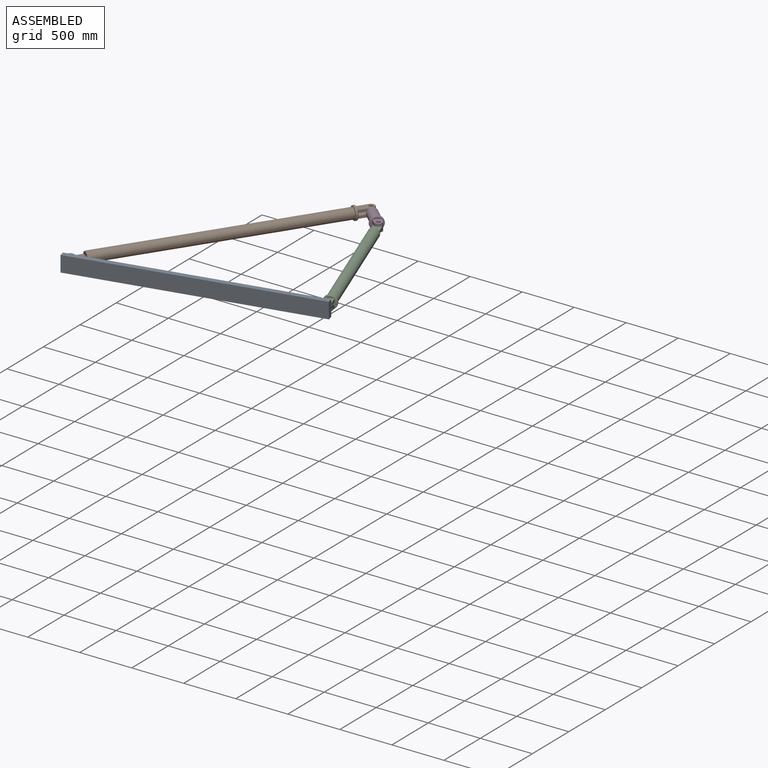
[diagram: assembled view]
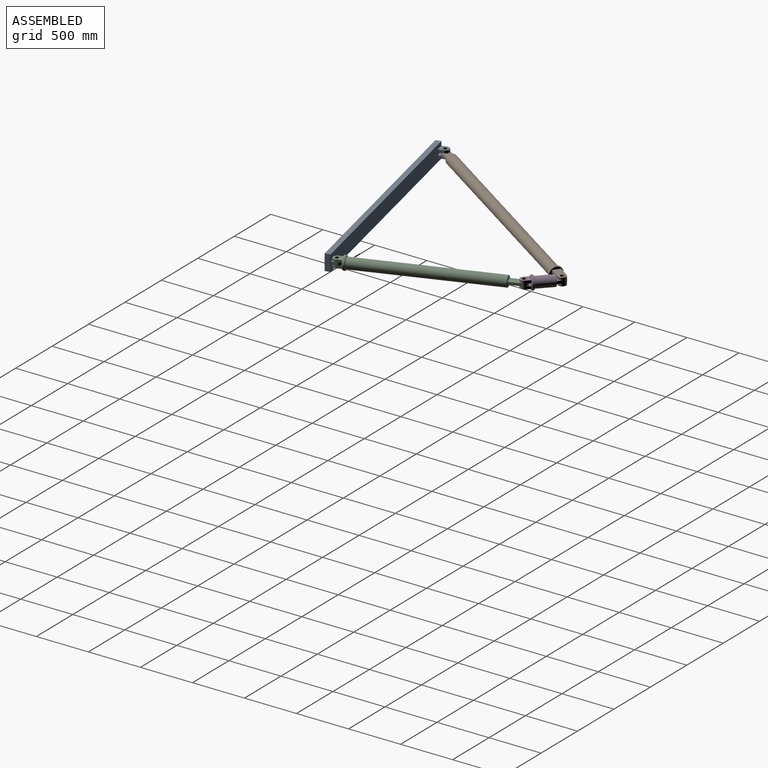
[diagram: assembled view, second angle]
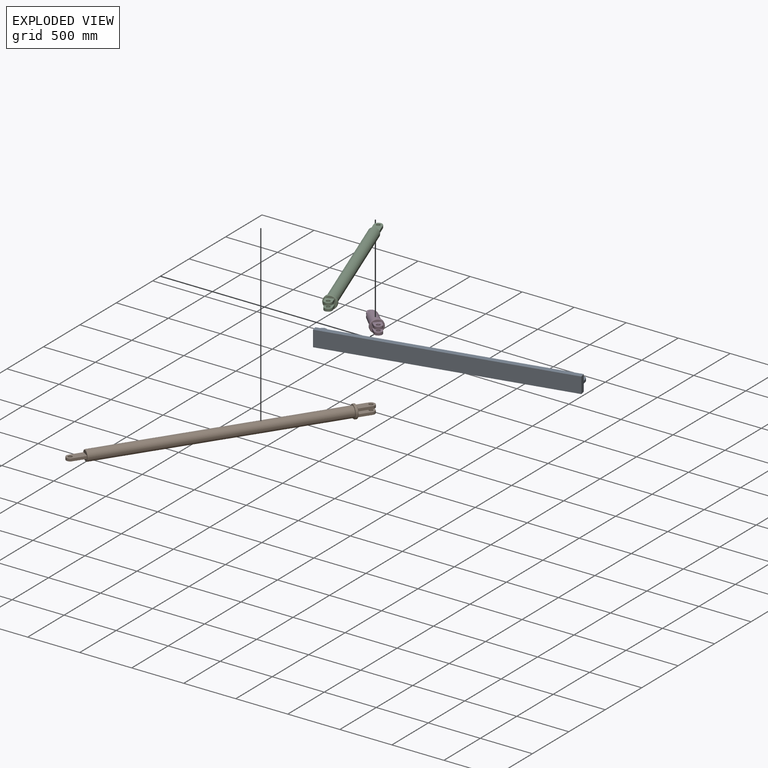
[diagram: exploded view]
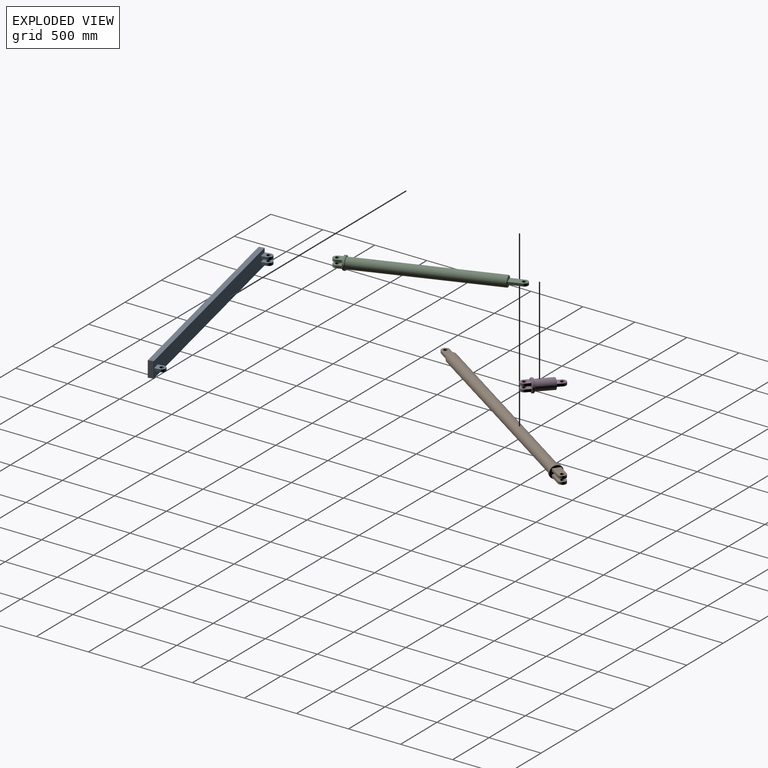
[diagram: exploded view, second angle]
ASSEMBLY  parts=4 mates=4
PART A: 40 faces, bbox 2286x139.7x152.4 mm
  f0: cylinder r=19.05mm len=38.1mm, axis (0,0,1), area 3040.2mm2, adj f20,f22
  f1: cylinder r=19.05mm len=38.1mm, axis (0,0,1), area 3040.2mm2, adj f21,f23
  f2: cylinder r=19.05mm len=38.1mm, axis (0,0,1), area 3040.2mm2, adj f15,f16
  f3: cylinder r=38.1mm len=76.2mm, axis (0,0,-1), area 3040.2mm2, adj f18,f19,f21,f23
  f4: plane 49.8x25.4mm, normal (-1,0,0), area 1264.9mm2, adj f17,f20,f22,f38
  f5: plane 49.8x25.4mm, normal (1,0,0), area 1264.9mm2, adj f17,f20,f22,f37
  f6: plane 2286x49.8mm, normal (0,0,1), area 113842.8mm2, adj f7,f10,f11,f24
  f7: plane 2286x152.4mm, normal (0,-1,0), area 348386.4mm2, adj f6,f8,f10,f11
  f8: plane 2286x49.8mm, normal (0,0,-1), area 113842.8mm2, adj f7,f10,f11,f27
  f9: plane 2284x150.4mm, normal (0,1,0), area 337085.6mm2, adj f24,f25,f26,f27,f28,f29,f30,f31
  f10: plane 152.4x49.8mm, normal (1,0,0), area 7589.5mm2, adj f6,f7,f8,f25
  f11: plane 152.4x49.8mm, normal (-1,0,0), area 7589.5mm2, adj f6,f7,f8,f26
  f12: cylinder r=38.1mm len=76.2mm, axis (0,0,-1), area 3040.2mm2, adj f13,f14,f15,f16
  f13: plane 49.8x25.4mm, normal (-1,0,0), area 1264.9mm2, adj f12,f15,f16,f28
  f14: plane 49.8x25.4mm, normal (1,0,0), area 1264.9mm2, adj f12,f15,f16,f31
  f15: plane 87.9x76.2mm, normal (0,0,1), area 4934.9mm2, adj f2,f12,f13,f14,f29
  f16: plane 87.9x76.2mm, normal (0,0,-1), area 4934.9mm2, adj f2,f12,f13,f14,f30
  f17: cylinder r=38.1mm len=76.2mm, axis (0,0,-1), area 3040.2mm2, adj f4,f5,f20,f22
  f18: plane 49.8x25.4mm, normal (-1,0,0), area 1264.9mm2, adj f3,f21,f23,f32
  f19: plane 49.8x25.4mm, normal (1,0,0), area 1264.9mm2, adj f3,f21,f23,f35
  f20: plane 87.9x76.2mm, normal (0,0,1), area 4934.9mm2, adj f0,f4,f5,f17,f39
  f21: plane 87.9x76.2mm, normal (0,0,-1), area 4934.9mm2, adj f1,f3,f18,f19,f34
  f22: plane 87.9x76.2mm, normal (0,0,-1), area 4934.9mm2, adj f0,f4,f5,f17,f36
  f23: plane 87.9x76.2mm, normal (0,0,1), area 4934.9mm2, adj f1,f3,f18,f19,f33
  f24: cylinder r=1mm len=2286mm, axis (1,0,0), area 3589.7mm2, adj f6,f9,f25,f26
  f25: cylinder r=1mm len=152.4mm, axis (0,0,1), area 238.2mm2, adj f9,f10,f24,f27
  f26: cylinder r=1mm len=152.4mm, axis (0,0,-1), area 238.2mm2, adj f9,f11,f24,f27
  f27: cylinder r=1mm len=2286mm, axis (1,0,0), area 3589.7mm2, adj f8,f9,f25,f26
  f28: cylinder r=1mm len=27.4mm, axis (0,0,-1), area 41mm2, adj f9,f13,f29,f30
  f29: cylinder r=1mm len=78.2mm, axis (1,0,0), area 120.8mm2, adj f9,f15,f28,f31
  f30: cylinder r=1mm len=78.2mm, axis (-1,0,0), area 120.8mm2, adj f9,f16,f28,f31
  f31: cylinder r=1mm len=27.4mm, axis (0,0,-1), area 41mm2, adj f9,f14,f29,f30
  f32: cylinder r=1mm len=27.4mm, axis (0,0,-1), area 41mm2, adj f9,f18,f33,f34
  f33: cylinder r=1mm len=78.2mm, axis (1,0,0), area 120.8mm2, adj f9,f23,f32,f35
  f34: cylinder r=1mm len=78.2mm, axis (-1,0,0), area 120.8mm2, adj f9,f21,f32,f35
  f35: cylinder r=1mm len=27.4mm, axis (0,0,-1), area 41mm2, adj f9,f19,f33,f34
  f36: cylinder r=1mm len=78.2mm, axis (-1,0,0), area 120.8mm2, adj f9,f22,f37,f38
  f37: cylinder r=1mm len=27.4mm, axis (0,0,-1), area 41mm2, adj f5,f9,f36,f39
  f38: cylinder r=1mm len=27.4mm, axis (0,0,-1), area 41mm2, adj f4,f9,f36,f39
  f39: cylinder r=1mm len=78.2mm, axis (1,0,0), area 120.8mm2, adj f9,f20,f37,f38
PART B: 30 faces, bbox 2616.2x137.5x137.5 mm
  f0: cylinder r=19.05mm len=38.1mm, axis (0,0,1), area 3040.2mm2, adj f21,f23
  f1: torus R=57.15mm, axis (-1,0,0), area 3835.1mm2, adj f6,f9
  f2: torus R=57.15mm, axis (1,0,0), area 3835.1mm2, adj f6,f17
  f3: torus R=44.45mm, axis (1,0,0), area 3039.1mm2, adj f7,f8
  f4: cylinder r=19.05mm len=38.1mm, axis (0,0,1), area 3040.2mm2, adj f10,f18
  f5: cylinder r=19.05mm len=38.1mm, axis (0,0,1), area 3040.2mm2, adj f13,f16
  f6: cylinder r=63.5mm len=127mm, axis (-1,0,0), area 5067.1mm2, adj f1,f2
  f7: cylinder r=50.8mm len=2254.25mm, axis (-1,0,0), area 719524.6mm2, adj f3,f9
  f8: plane 88.9x88.9mm, normal (1,0,0), area 3729.8mm2, adj f3,f26,f27,f28,f29
  f9: plane 114.3x114.3mm, normal (1,0,0), area 2153.5mm2, adj f1,f7
  f10: plane 165.1x76.2mm, normal (0,0,-1), area 10817.5mm2, adj f4,f11,f17,f19,f20
  f11: cylinder r=38.1mm len=76.2mm, axis (0,0,1), area 3040.2mm2, adj f10,f18,f19,f20
  f12: cylinder r=38.1mm len=76.2mm, axis (0,0,1), area 3040.2mm2, adj f13,f14,f15,f16
  f13: plane 165.1x76.2mm, normal (0,0,1), area 10817.5mm2, adj f5,f12,f14,f15,f17
  f14: plane 127x25.4mm, normal (0,1,0), area 3225.8mm2, adj f12,f13,f16,f17
  f15: plane 127x25.4mm, normal (0,-1,0), area 3225.8mm2, adj f12,f13,f16,f17
  f16: plane 165.1x76.2mm, normal (0,0,-1), area 10817.5mm2, adj f5,f12,f14,f15,f17
  f17: plane 114.3x114.3mm, normal (-1,0,0), area 6389.9mm2, adj f2,f10,f13,f14,f15,f16,f18,f19
  f18: plane 165.1x76.2mm, normal (0,0,1), area 10817.5mm2, adj f4,f11,f17,f19,f20
  f19: plane 127x25.4mm, normal (0,1,0), area 3225.8mm2, adj f10,f11,f17,f18
  f20: plane 127x25.4mm, normal (0,-1,0), area 3225.8mm2, adj f10,f11,f17,f18
  f21: plane 162.56x76.2mm, normal (0,0,1), area 10623.9mm2, adj f0,f22,f24,f25,f26
  f22: plane 124.46x25.4mm, normal (0,-1,0), area 3161.3mm2, adj f21,f23,f25,f27
  f23: plane 162.56x76.2mm, normal (0,0,-1), area 10623.9mm2, adj f0,f22,f24,f25,f29
  f24: plane 124.46x25.4mm, normal (0,1,0), area 3161.3mm2, adj f21,f23,f25,f28
  f25: cylinder r=38.1mm len=76.2mm, axis (0,0,-1), area 3040.2mm2, adj f21,f22,f23,f24
  f26: cylinder r=2.54mm len=81.28mm, axis (0,-1,0), area 311.4mm2, adj f8,f21,f27,f28
  f27: cylinder r=2.54mm len=30.48mm, axis (0,0,-1), area 108.7mm2, adj f8,f22,f26,f29
  f28: cylinder r=2.54mm len=30.48mm, axis (0,0,1), area 108.7mm2, adj f8,f24,f26,f29
  f29: cylinder r=2.54mm len=81.28mm, axis (0,1,0), area 311.4mm2, adj f8,f23,f27,f28
PART C: 30 faces, bbox 1600.2x137.5x137.5 mm
  f0: cylinder r=19.05mm len=38.1mm, axis (0,0,1), area 3040.2mm2, adj f21,f23
  f1: torus R=57.15mm, axis (-1,0,0), area 3835.1mm2, adj f6,f9
  f2: torus R=57.15mm, axis (1,0,0), area 3835.1mm2, adj f6,f17
  f3: torus R=44.45mm, axis (1,0,0), area 3039.1mm2, adj f7,f8
  f4: cylinder r=19.05mm len=38.1mm, axis (0,0,1), area 3040.2mm2, adj f10,f18
  f5: cylinder r=19.05mm len=38.1mm, axis (0,0,1), area 3040.2mm2, adj f13,f16
  f6: cylinder r=63.5mm len=127mm, axis (-1,0,0), area 5067.1mm2, adj f1,f2
  f7: cylinder r=50.8mm len=1314.45mm, axis (-1,0,0), area 419553.8mm2, adj f3,f9
  f8: plane 88.9x88.9mm, normal (1,0,0), area 3729.8mm2, adj f3,f26,f27,f28,f29
  f9: plane 114.3x114.3mm, normal (1,0,0), area 2153.5mm2, adj f1,f7
  f10: plane 88.9x76.2mm, normal (0,0,-1), area 5011.1mm2, adj f4,f11,f17,f19,f20
  f11: cylinder r=38.1mm len=76.2mm, axis (0,0,1), area 3040.2mm2, adj f10,f18,f19,f20
  f12: cylinder r=38.1mm len=76.2mm, axis (0,0,1), area 3040.2mm2, adj f13,f14,f15,f16
  f13: plane 88.9x76.2mm, normal (0,0,1), area 5011.1mm2, adj f5,f12,f14,f15,f17
  f14: plane 50.8x25.4mm, normal (0,1,0), area 1290.3mm2, adj f12,f13,f16,f17
  f15: plane 50.8x25.4mm, normal (0,-1,0), area 1290.3mm2, adj f12,f13,f16,f17
  f16: plane 88.9x76.2mm, normal (0,0,-1), area 5011.1mm2, adj f5,f12,f14,f15,f17
  f17: plane 114.3x114.3mm, normal (-1,0,0), area 6389.9mm2, adj f2,f10,f13,f14,f15,f16,f18,f19
  f18: plane 88.9x76.2mm, normal (0,0,1), area 5011.1mm2, adj f4,f11,f17,f19,f20
  f19: plane 50.8x25.4mm, normal (0,1,0), area 1290.3mm2, adj f10,f11,f17,f18
  f20: plane 50.8x25.4mm, normal (0,-1,0), area 1290.3mm2, adj f10,f11,f17,f18
  f21: plane 162.56x76.2mm, normal (0,0,1), area 10623.9mm2, adj f0,f22,f24,f25,f26
  f22: plane 124.46x25.4mm, normal (0,-1,0), area 3161.3mm2, adj f21,f23,f25,f27
  f23: plane 162.56x76.2mm, normal (0,0,-1), area 10623.9mm2, adj f0,f22,f24,f25,f29
  f24: plane 124.46x25.4mm, normal (0,1,0), area 3161.3mm2, adj f21,f23,f25,f28
  f25: cylinder r=38.1mm len=76.2mm, axis (0,0,-1), area 3040.2mm2, adj f21,f22,f23,f24
  f26: cylinder r=2.54mm len=81.28mm, axis (0,-1,0), area 311.4mm2, adj f8,f21,f27,f28
  f27: cylinder r=2.54mm len=30.48mm, axis (0,0,-1), area 108.7mm2, adj f8,f22,f26,f29
  f28: cylinder r=2.54mm len=30.48mm, axis (0,0,1), area 108.7mm2, adj f8,f24,f26,f29
  f29: cylinder r=2.54mm len=81.28mm, axis (0,1,0), area 311.4mm2, adj f8,f23,f27,f28
PART D: 30 faces, bbox 381x137.5x137.5 mm
  f0: cylinder r=19.05mm len=38.1mm, axis (0,0,1), area 3040.2mm2, adj f21,f23
  f1: torus R=57.15mm, axis (-1,0,0), area 3835.1mm2, adj f6,f9
  f2: torus R=57.15mm, axis (1,0,0), area 3835.1mm2, adj f6,f17
  f3: torus R=44.45mm, axis (1,0,0), area 3039.1mm2, adj f7,f8
  f4: cylinder r=19.05mm len=38.1mm, axis (0,0,1), area 3040.2mm2, adj f10,f18
  f5: cylinder r=19.05mm len=38.1mm, axis (0,0,1), area 3040.2mm2, adj f13,f16
  f6: cylinder r=63.5mm len=127mm, axis (-1,0,0), area 5067.1mm2, adj f1,f2
  f7: cylinder r=50.8mm len=171.45mm, axis (-1,0,0), area 54724.4mm2, adj f3,f9
  f8: plane 88.9x88.9mm, normal (1,0,0), area 3729.8mm2, adj f3,f26,f27,f28,f29
  f9: plane 114.3x114.3mm, normal (1,0,0), area 2153.5mm2, adj f1,f7
  f10: plane 88.9x76.2mm, normal (0,0,-1), area 5011.1mm2, adj f4,f11,f17,f19,f20
  f11: cylinder r=38.1mm len=76.2mm, axis (0,0,1), area 3040.2mm2, adj f10,f18,f19,f20
  f12: cylinder r=38.1mm len=76.2mm, axis (0,0,1), area 3040.2mm2, adj f13,f14,f15,f16
  f13: plane 88.9x76.2mm, normal (0,0,1), area 5011.1mm2, adj f5,f12,f14,f15,f17
  f14: plane 50.8x25.4mm, normal (0,1,0), area 1290.3mm2, adj f12,f13,f16,f17
  f15: plane 50.8x25.4mm, normal (0,-1,0), area 1290.3mm2, adj f12,f13,f16,f17
  f16: plane 88.9x76.2mm, normal (0,0,-1), area 5011.1mm2, adj f5,f12,f14,f15,f17
  f17: plane 114.3x114.3mm, normal (-1,0,0), area 6389.9mm2, adj f2,f10,f13,f14,f15,f16,f18,f19
  f18: plane 88.9x76.2mm, normal (0,0,1), area 5011.1mm2, adj f4,f11,f17,f19,f20
  f19: plane 50.8x25.4mm, normal (0,1,0), area 1290.3mm2, adj f10,f11,f17,f18
  f20: plane 50.8x25.4mm, normal (0,-1,0), area 1290.3mm2, adj f10,f11,f17,f18
  f21: plane 86.36x76.2mm, normal (0,0,1), area 4817.5mm2, adj f0,f22,f24,f25,f26
  f22: plane 48.26x25.4mm, normal (0,-1,0), area 1225.8mm2, adj f21,f23,f25,f27
  f23: plane 86.36x76.2mm, normal (0,0,-1), area 4817.5mm2, adj f0,f22,f24,f25,f29
  f24: plane 48.26x25.4mm, normal (0,1,0), area 1225.8mm2, adj f21,f23,f25,f28
  f25: cylinder r=38.1mm len=76.2mm, axis (0,0,-1), area 3040.2mm2, adj f21,f22,f23,f24
  f26: cylinder r=2.54mm len=81.28mm, axis (0,-1,0), area 311.4mm2, adj f8,f21,f27,f28
  f27: cylinder r=2.54mm len=30.48mm, axis (0,0,-1), area 108.7mm2, adj f8,f22,f26,f29
  f28: cylinder r=2.54mm len=30.48mm, axis (0,0,1), area 108.7mm2, adj f8,f24,f26,f29
  f29: cylinder r=2.54mm len=81.28mm, axis (0,1,0), area 311.4mm2, adj f8,f23,f27,f28
PLACE A rot(axis=(0,0,1),12.5deg) t=(596.13,-630.76,0)mm
PLACE B rot(axis=(0,0,-1),123.8deg) t=(839.53,1234.67,0)mm
PLACE C rot(axis=(0,0,1),110deg) t=(1632.78,-256.34,0)mm fixed
PLACE D rot(axis=(0,0,1),135.9deg) t=(1092.45,1163.38,0)mm
MATE revolute D.f0 <-> B.f4  axis (0,0,1) through (910.14,1340.24,12.7)mm
MATE revolute B.f0 <-> A.f0  axis (0,0,1) through (-501.98,-771.05,12.7)mm
MATE revolute C.f4 <-> A.f16  axis (0,0,1) through (1650.16,-304.08,-12.7)mm
MATE revolute C.f0 <-> D.f4  axis (0,0,1) through (1128.92,1128.01,12.7)mm
